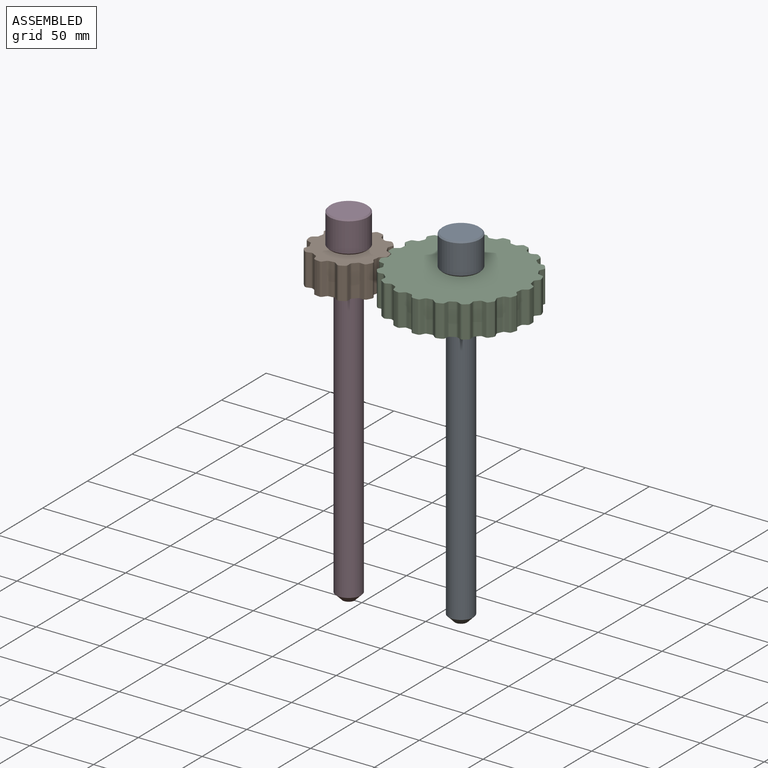
[diagram: assembled view]
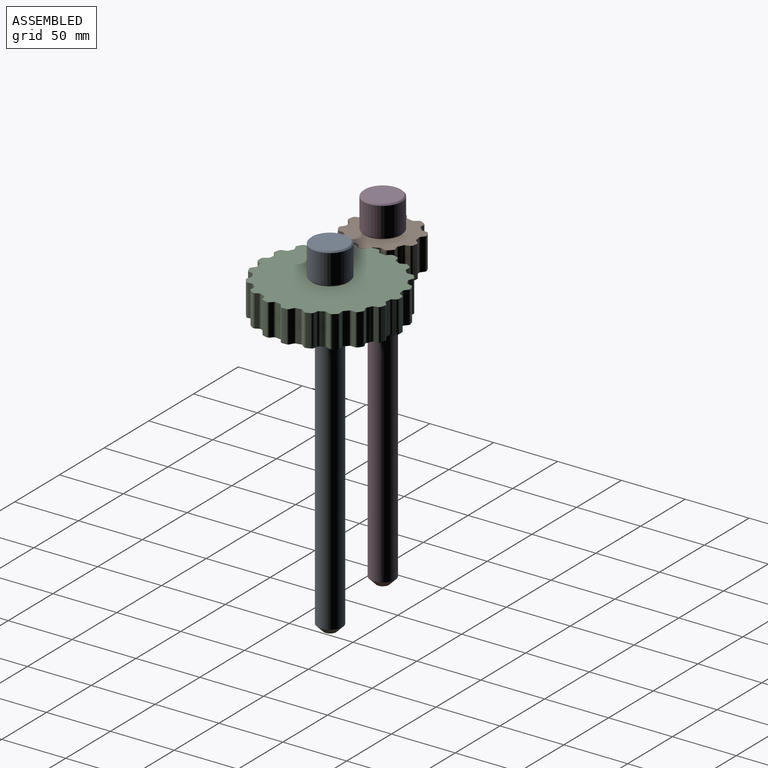
[diagram: assembled view, second angle]
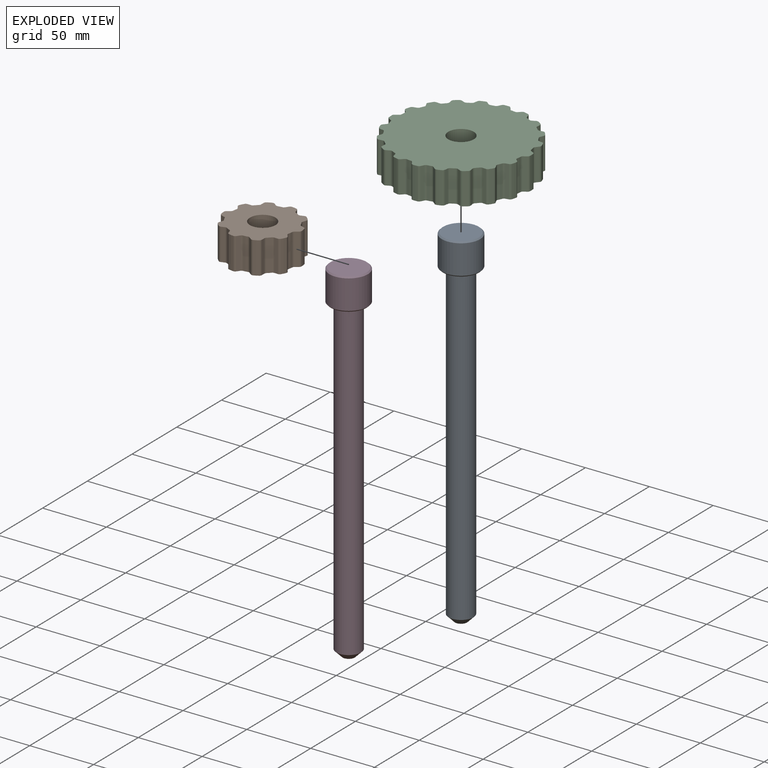
[diagram: exploded view]
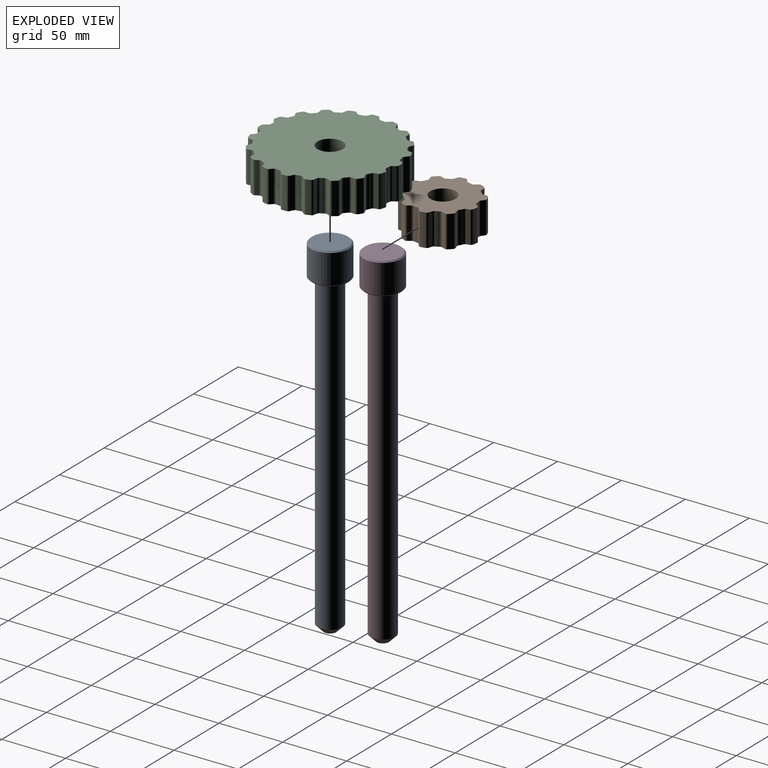
[diagram: exploded view, second angle]
ASSEMBLY  parts=4 mates=2
PART A: 9 faces, bbox 30x30x275 mm
  f0: cylinder r=9.75mm len=244mm, axis (0,0,-1), area 14947.7mm2, adj f7,f8
  f1: plane 9.5x9.5mm, normal (0,0,-1), area 70.9mm2, adj f7
  f2: cylinder r=15mm len=30mm, axis (0,0,-1), area 2167.7mm2, adj f5,f6
  f3: plane 28x28mm, normal (0,0,1), area 615.8mm2, adj f6
  f4: plane 28x28mm, normal (0,0,-1), area 252.7mm2, adj f5,f8
  f5: cone r=15mm half-angle=45deg, axis (0,0,1), area 128.8mm2, adj f2,f4
  f6: cone r=14mm half-angle=45deg, axis (0,0,-1), area 128.8mm2, adj f2,f3
  f7: cone r=9.75mm half-angle=45deg, axis (0,0,1), area 322.1mm2, adj f0,f1
  f8: torus R=10.75mm, axis (0,0,1), area 99.8mm2, adj f0,f4
PART B: 103 faces, bbox 56.3x58x25 mm
  f0: plane 25x2.78mm, normal (-0.99,0.17,0), area 70.4mm2, adj f61,f62,f63,f102
  f1: plane 25x1.45mm, normal (-0.63,-0.78,0), area 46.6mm2, adj f2,f61,f62,f63
  f2: plane 25x1.56mm, normal (-0.54,-0.84,0), area 46.6mm2, adj f1,f61,f62,f64
  f3: plane 25x2.49mm, normal (0.47,-0.89,0), area 70.4mm2, adj f61,f62,f64,f65
  f4: plane 25x1.6mm, normal (-0.36,-0.93,0), area 42.8mm2, adj f5,f61,f62,f65
  f5: plane 25x1.65mm, normal (-0.26,-0.97,0), area 42.8mm2, adj f4,f61,f62,f66
  f6: plane 25x2.53mm, normal (-0.9,-0.44,0), area 70.4mm2, adj f61,f62,f66,f67
  f7: plane 25x1.86mm, normal (-0.05,-1,0), area 46.6mm2, adj f8,f61,f62,f67
  f8: plane 25x1.86mm, normal (0.05,-1,0), area 46.6mm2, adj f7,f61,f62,f68
  f9: plane 25x2.53mm, normal (0.9,-0.44,0), area 70.4mm2, adj f61,f62,f68,f69
  f10: plane 25x1.65mm, normal (0.26,-0.97,0), area 42.8mm2, adj f11,f61,f62,f69
  f11: plane 25x1.6mm, normal (0.36,-0.93,0), area 42.8mm2, adj f10,f61,f62,f70
  f12: plane 25x2.49mm, normal (-0.47,-0.89,0), area 70.4mm2, adj f61,f62,f70,f71
  f13: plane 25x1.56mm, normal (0.54,-0.84,0), area 46.6mm2, adj f14,f61,f62,f71
  f14: plane 25x1.45mm, normal (0.63,-0.78,0), area 46.6mm2, adj f13,f61,f62,f72
  f15: plane 25x2.78mm, normal (0.99,0.17,0), area 70.4mm2, adj f61,f62,f72,f73
  f16: plane 25x1.33mm, normal (0.78,-0.63,0), area 42.8mm2, adj f17,f61,f62,f73
  f17: plane 25x1.44mm, normal (0.84,-0.54,0), area 42.8mm2, adj f16,f61,f62,f74
  f18: plane 25x2.79mm, normal (0.14,-0.99,0), area 70.4mm2, adj f61,f62,f74,f75
  f19: plane 25x1.74mm, normal (0.93,-0.36,0), area 46.6mm2, adj f20,f61,f62,f75
  f20: plane 25x1.8mm, normal (0.97,-0.26,0), area 46.6mm2, adj f19,f61,f62,f76
  f21: plane 25x2.02mm, normal (0.7,0.72,0), area 70.4mm2, adj f61,f62,f76,f77
  f22: plane 25x1.71mm, normal (1,-0.05,0), area 42.8mm2, adj f23,f61,f62,f77
  f23: plane 25x1.71mm, normal (1,0.05,0), area 42.8mm2, adj f22,f61,f62,f78
  f24: plane 25x2.02mm, normal (0.7,-0.72,0), area 70.4mm2, adj f61,f62,f78,f79
  f25: plane 25x1.8mm, normal (0.97,0.26,0), area 46.6mm2, adj f26,f61,f62,f79
  f26: plane 25x1.74mm, normal (0.93,0.36,0), area 46.6mm2, adj f25,f61,f62,f80
  f27: plane 25x2.79mm, normal (0.14,0.99,0), area 70.4mm2, adj f61,f62,f80,f81
  f28: plane 25x1.44mm, normal (0.84,0.54,0), area 42.8mm2, adj f29,f61,f62,f81
  f29: plane 25x1.33mm, normal (0.78,0.63,0), area 42.8mm2, adj f28,f61,f62,f82
  f30: plane 25x2.78mm, normal (0.99,-0.17,0), area 70.4mm2, adj f61,f62,f82,f83
  f31: plane 25x1.45mm, normal (0.63,0.78,0), area 46.6mm2, adj f32,f61,f62,f83
  f32: plane 25x1.56mm, normal (0.54,0.84,0), area 46.6mm2, adj f31,f61,f62,f84
  f33: plane 25x2.49mm, normal (-0.47,0.89,0), area 70.4mm2, adj f61,f62,f84,f85
  f34: plane 25x1.6mm, normal (0.36,0.93,0), area 42.8mm2, adj f35,f61,f62,f85
  f35: plane 25x1.65mm, normal (0.26,0.97,0), area 42.8mm2, adj f34,f61,f62,f86
  f36: plane 25x2.53mm, normal (0.9,0.44,0), area 70.4mm2, adj f61,f62,f86,f87
  f37: plane 25x1.86mm, normal (0.05,1,0), area 46.6mm2, adj f38,f61,f62,f87
  f38: plane 25x1.86mm, normal (-0.05,1,0), area 46.6mm2, adj f37,f61,f62,f88
  f39: plane 25x2.53mm, normal (-0.9,0.44,0), area 70.4mm2, adj f61,f62,f88,f89
  f40: plane 25x1.65mm, normal (-0.26,0.97,0), area 42.8mm2, adj f41,f61,f62,f89
  f41: plane 25x1.6mm, normal (-0.36,0.93,0), area 42.8mm2, adj f40,f61,f62,f90
  f42: plane 25x2.49mm, normal (0.47,0.89,0), area 70.4mm2, adj f61,f62,f90,f91
  f43: plane 25x1.56mm, normal (-0.54,0.84,0), area 46.6mm2, adj f44,f61,f62,f91
  f44: plane 25x1.45mm, normal (-0.63,0.78,0), area 46.6mm2, adj f43,f61,f62,f92
  f45: plane 25x2.78mm, normal (-0.99,-0.17,0), area 70.4mm2, adj f61,f62,f92,f93
  f46: plane 25x1.33mm, normal (-0.78,0.63,0), area 42.8mm2, adj f47,f61,f62,f93
  f47: plane 25x1.44mm, normal (-0.84,0.54,0), area 42.8mm2, adj f46,f61,f62,f94
  f48: plane 25x2.79mm, normal (-0.14,0.99,0), area 70.4mm2, adj f61,f62,f94,f95
  f49: plane 25x1.74mm, normal (-0.93,0.36,0), area 46.6mm2, adj f50,f61,f62,f95
  f50: plane 25x1.8mm, normal (-0.97,0.26,0), area 46.6mm2, adj f49,f61,f62,f96
  f51: plane 25x2.02mm, normal (-0.7,-0.72,0), area 70.4mm2, adj f61,f62,f96,f97
  f52: plane 25x1.71mm, normal (-1,0.05,0), area 42.8mm2, adj f53,f61,f62,f97
  f53: plane 25x1.71mm, normal (-1,-0.05,0), area 42.8mm2, adj f52,f61,f62,f98
  f54: plane 25x2.02mm, normal (-0.7,0.72,0), area 70.4mm2, adj f61,f62,f98,f99
  f55: plane 25x1.8mm, normal (-0.97,-0.26,0), area 46.6mm2, adj f56,f61,f62,f99
  f56: plane 25x1.74mm, normal (-0.93,-0.36,0), area 46.6mm2, adj f55,f61,f62,f100
  f57: plane 25x2.79mm, normal (-0.14,-0.99,0), area 70.4mm2, adj f61,f62,f100,f101
  f58: plane 25x1.44mm, normal (-0.84,-0.54,0), area 42.8mm2, adj f59,f61,f62,f101
  f59: plane 25x1.33mm, normal (-0.78,-0.63,0), area 42.8mm2, adj f58,f61,f62,f102
  f60: cylinder r=10mm len=25mm, axis (0,0,-1), area 1570.8mm2, adj f61,f62
  f61: plane 58x56.26mm, normal (0,0,1), area 1973.8mm2, adj f0,f1,f2,f3,f4,f5,f6,f7
  f62: plane 58x56.26mm, normal (0,0,-1), area 1973.8mm2, adj f0,f1,f2,f3,f4,f5,f6,f7
  f63: cylinder r=2mm len=25mm, axis (0,0,-1), area 53mm2, adj f0,f1,f61,f62
  f64: cylinder r=2mm len=25mm, axis (0,0,-1), area 53mm2, adj f2,f3,f61,f62
  f65: cylinder r=2mm len=25mm, axis (0,0,1), area 42.5mm2, adj f3,f4,f61,f62
  f66: cylinder r=2mm len=25mm, axis (0,0,1), area 42.5mm2, adj f5,f6,f61,f62
  f67: cylinder r=2mm len=25mm, axis (0,0,-1), area 53mm2, adj f6,f7,f61,f62
  f68: cylinder r=2mm len=25mm, axis (0,0,-1), area 53mm2, adj f8,f9,f61,f62
  f69: cylinder r=2mm len=25mm, axis (0,0,1), area 42.5mm2, adj f9,f10,f61,f62
  f70: cylinder r=2mm len=25mm, axis (0,0,1), area 42.5mm2, adj f11,f12,f61,f62
  f71: cylinder r=2mm len=25mm, axis (0,0,-1), area 53mm2, adj f12,f13,f61,f62
  f72: cylinder r=2mm len=25mm, axis (0,0,-1), area 53mm2, adj f14,f15,f61,f62
  f73: cylinder r=2mm len=25mm, axis (0,0,1), area 42.5mm2, adj f15,f16,f61,f62
  f74: cylinder r=2mm len=25mm, axis (0,0,1), area 42.5mm2, adj f17,f18,f61,f62
  f75: cylinder r=2mm len=25mm, axis (0,0,-1), area 53mm2, adj f18,f19,f61,f62
  f76: cylinder r=2mm len=25mm, axis (0,0,-1), area 53mm2, adj f20,f21,f61,f62
  f77: cylinder r=2mm len=25mm, axis (0,0,1), area 42.5mm2, adj f21,f22,f61,f62
  f78: cylinder r=2mm len=25mm, axis (0,0,1), area 42.5mm2, adj f23,f24,f61,f62
  f79: cylinder r=2mm len=25mm, axis (0,0,-1), area 53mm2, adj f24,f25,f61,f62
  f80: cylinder r=2mm len=25mm, axis (0,0,-1), area 53mm2, adj f26,f27,f61,f62
  f81: cylinder r=2mm len=25mm, axis (0,0,1), area 42.5mm2, adj f27,f28,f61,f62
  f82: cylinder r=2mm len=25mm, axis (0,0,1), area 42.5mm2, adj f29,f30,f61,f62
  f83: cylinder r=2mm len=25mm, axis (0,0,-1), area 53mm2, adj f30,f31,f61,f62
  f84: cylinder r=2mm len=25mm, axis (0,0,-1), area 53mm2, adj f32,f33,f61,f62
  f85: cylinder r=2mm len=25mm, axis (0,0,1), area 42.5mm2, adj f33,f34,f61,f62
  f86: cylinder r=2mm len=25mm, axis (0,0,1), area 42.5mm2, adj f35,f36,f61,f62
  f87: cylinder r=2mm len=25mm, axis (0,0,-1), area 53mm2, adj f36,f37,f61,f62
  f88: cylinder r=2mm len=25mm, axis (0,0,-1), area 53mm2, adj f38,f39,f61,f62
  f89: cylinder r=2mm len=25mm, axis (0,0,1), area 42.5mm2, adj f39,f40,f61,f62
  f90: cylinder r=2mm len=25mm, axis (0,0,1), area 42.5mm2, adj f41,f42,f61,f62
  f91: cylinder r=2mm len=25mm, axis (0,0,-1), area 53mm2, adj f42,f43,f61,f62
  f92: cylinder r=2mm len=25mm, axis (0,0,-1), area 53mm2, adj f44,f45,f61,f62
  f93: cylinder r=2mm len=25mm, axis (0,0,1), area 42.5mm2, adj f45,f46,f61,f62
  f94: cylinder r=2mm len=25mm, axis (0,0,1), area 42.5mm2, adj f47,f48,f61,f62
  f95: cylinder r=2mm len=25mm, axis (0,0,-1), area 53mm2, adj f48,f49,f61,f62
  f96: cylinder r=2mm len=25mm, axis (0,0,-1), area 53mm2, adj f50,f51,f61,f62
  f97: cylinder r=2mm len=25mm, axis (0,0,1), area 42.5mm2, adj f51,f52,f61,f62
  f98: cylinder r=2mm len=25mm, axis (0,0,1), area 42.5mm2, adj f53,f54,f61,f62
  f99: cylinder r=2mm len=25mm, axis (0,0,-1), area 53mm2, adj f54,f55,f61,f62
  f100: cylinder r=2mm len=25mm, axis (0,0,-1), area 53mm2, adj f56,f57,f61,f62
  f101: cylinder r=2mm len=25mm, axis (0,0,1), area 42.5mm2, adj f57,f58,f61,f62
  f102: cylinder r=2mm len=25mm, axis (0,0,1), area 42.5mm2, adj f0,f59,f61,f62
PART C: 203 faces, bbox 108x108x25 mm
  f0: plane 25x1.4mm, normal (-0.82,0.57,0), area 42.5mm2, adj f119,f121,f122,f123
  f1: plane 25x2.48mm, normal (-0.91,-0.41,0), area 68mm2, adj f121,f122,f123,f124
  f2: plane 25x1.43mm, normal (-0.88,0.48,0), area 40.6mm2, adj f3,f121,f122,f124
  f3: plane 25x1.47mm, normal (-0.9,0.43,0), area 40.6mm2, adj f2,f121,f122,f125
  f4: plane 25x2.66mm, normal (-0.2,0.98,0), area 68mm2, adj f121,f122,f125,f126
  f5: plane 25x1.6mm, normal (-0.94,0.33,0), area 42.5mm2, adj f6,f121,f122,f126
  f6: plane 25x1.63mm, normal (-0.96,0.28,0), area 42.5mm2, adj f5,f121,f122,f127
  f7: plane 25x2.01mm, normal (-0.74,-0.67,0), area 68mm2, adj f121,f122,f127,f128
  f8: plane 25x1.6mm, normal (-0.98,0.18,0), area 40.6mm2, adj f9,f121,f122,f128
  f9: plane 25x1.61mm, normal (-0.99,0.13,0), area 40.6mm2, adj f8,f121,f122,f129
  f10: plane 25x2.36mm, normal (-0.5,0.87,0), area 68mm2, adj f121,f122,f129,f130
  f11: plane 25x1.7mm, normal (-1,0.03,0), area 42.5mm2, adj f12,f121,f122,f130
  f12: plane 25x1.7mm, normal (-1,-0.03,0), area 42.5mm2, adj f11,f121,f122,f131
  f13: plane 25x2.36mm, normal (-0.5,-0.87,0), area 68mm2, adj f121,f122,f131,f132
  f14: plane 25x1.61mm, normal (-0.99,-0.13,0), area 40.6mm2, adj f15,f121,f122,f132
  f15: plane 25x1.6mm, normal (-0.98,-0.18,0), area 40.6mm2, adj f14,f121,f122,f133
  f16: plane 25x2.01mm, normal (-0.74,0.67,0), area 68mm2, adj f121,f122,f133,f134
  f17: plane 25x1.63mm, normal (-0.96,-0.28,0), area 42.5mm2, adj f18,f121,f122,f134
  f18: plane 25x1.6mm, normal (-0.94,-0.33,0), area 42.5mm2, adj f17,f121,f122,f135
  f19: plane 25x2.66mm, normal (-0.2,-0.98,0), area 68mm2, adj f121,f122,f135,f136
  f20: plane 25x1.47mm, normal (-0.9,-0.43,0), area 40.6mm2, adj f21,f121,f122,f136
  f21: plane 25x1.43mm, normal (-0.88,-0.48,0), area 40.6mm2, adj f20,f121,f122,f137
  f22: plane 25x2.48mm, normal (-0.91,0.41,0), area 68mm2, adj f121,f122,f137,f138
  f23: plane 25x1.4mm, normal (-0.82,-0.57,0), area 42.5mm2, adj f24,f121,f122,f138
  f24: plane 25x1.35mm, normal (-0.79,-0.61,0), area 42.5mm2, adj f23,f121,f122,f139
  f25: plane 25x2.7mm, normal (0.11,-0.99,0), area 68mm2, adj f121,f122,f139,f140
  f26: plane 25x1.18mm, normal (-0.73,-0.69,0), area 40.6mm2, adj f27,f121,f122,f140
  f27: plane 25x1.18mm, normal (-0.69,-0.73,0), area 40.6mm2, adj f26,f121,f122,f141
  f28: plane 25x2.7mm, normal (-0.99,0.11,0), area 68mm2, adj f121,f122,f141,f142
  f29: plane 25x1.35mm, normal (-0.61,-0.79,0), area 42.5mm2, adj f30,f121,f122,f142
  f30: plane 25x1.4mm, normal (-0.57,-0.82,0), area 42.5mm2, adj f29,f121,f122,f143
  f31: plane 25x2.48mm, normal (0.41,-0.91,0), area 68mm2, adj f121,f122,f143,f144
  f32: plane 25x1.43mm, normal (-0.48,-0.88,0), area 40.6mm2, adj f33,f121,f122,f144
  f33: plane 25x1.47mm, normal (-0.43,-0.9,0), area 40.6mm2, adj f32,f121,f122,f145
  f34: plane 25x2.66mm, normal (-0.98,-0.2,0), area 68mm2, adj f121,f122,f145,f146
  f35: plane 25x1.6mm, normal (-0.33,-0.94,0), area 42.5mm2, adj f36,f121,f122,f146
  f36: plane 25x1.63mm, normal (-0.28,-0.96,0), area 42.5mm2, adj f35,f121,f122,f147
  f37: plane 25x2.01mm, normal (0.67,-0.74,0), area 68mm2, adj f121,f122,f147,f148
  f38: plane 25x1.6mm, normal (-0.18,-0.98,0), area 40.6mm2, adj f39,f121,f122,f148
  f39: plane 25x1.61mm, normal (-0.13,-0.99,0), area 40.6mm2, adj f38,f121,f122,f149
  f40: plane 25x2.36mm, normal (-0.87,-0.5,0), area 68mm2, adj f121,f122,f149,f150
  f41: plane 25x1.7mm, normal (-0.03,-1,0), area 42.5mm2, adj f42,f121,f122,f150
  f42: plane 25x1.7mm, normal (0.03,-1,0), area 42.5mm2, adj f41,f121,f122,f151
  f43: plane 25x2.36mm, normal (0.87,-0.5,0), area 68mm2, adj f121,f122,f151,f152
  f44: plane 25x1.61mm, normal (0.13,-0.99,0), area 40.6mm2, adj f45,f121,f122,f152
  f45: plane 25x1.6mm, normal (0.18,-0.98,0), area 40.6mm2, adj f44,f121,f122,f153
  f46: plane 25x2.01mm, normal (-0.67,-0.74,0), area 68mm2, adj f121,f122,f153,f154
  f47: plane 25x1.63mm, normal (0.28,-0.96,0), area 42.5mm2, adj f48,f121,f122,f154
  f48: plane 25x1.6mm, normal (0.33,-0.94,0), area 42.5mm2, adj f47,f121,f122,f155
  f49: plane 25x2.66mm, normal (0.98,-0.2,0), area 68mm2, adj f121,f122,f155,f156
  f50: plane 25x1.47mm, normal (0.43,-0.9,0), area 40.6mm2, adj f51,f121,f122,f156
  f51: plane 25x1.43mm, normal (0.48,-0.88,0), area 40.6mm2, adj f50,f121,f122,f157
  f52: plane 25x2.48mm, normal (-0.41,-0.91,0), area 68mm2, adj f121,f122,f157,f158
  f53: plane 25x1.4mm, normal (0.57,-0.82,0), area 42.5mm2, adj f54,f121,f122,f158
  f54: plane 25x1.35mm, normal (0.61,-0.79,0), area 42.5mm2, adj f53,f121,f122,f159
  f55: plane 25x2.7mm, normal (0.99,0.11,0), area 68mm2, adj f121,f122,f159,f160
  f56: plane 25x1.18mm, normal (0.69,-0.73,0), area 40.6mm2, adj f57,f121,f122,f160
  f57: plane 25x1.18mm, normal (0.73,-0.69,0), area 40.6mm2, adj f56,f121,f122,f161
  f58: plane 25x2.7mm, normal (-0.11,-0.99,0), area 68mm2, adj f121,f122,f161,f162
  f59: plane 25x1.35mm, normal (0.79,-0.61,0), area 42.5mm2, adj f60,f121,f122,f162
  f60: plane 25x1.4mm, normal (0.82,-0.57,0), area 42.5mm2, adj f59,f121,f122,f163
  f61: plane 25x2.48mm, normal (0.91,0.41,0), area 68mm2, adj f121,f122,f163,f164
  f62: plane 25x1.43mm, normal (0.88,-0.48,0), area 40.6mm2, adj f63,f121,f122,f164
  f63: plane 25x1.47mm, normal (0.9,-0.43,0), area 40.6mm2, adj f62,f121,f122,f165
  f64: plane 25x2.66mm, normal (0.2,-0.98,0), area 68mm2, adj f121,f122,f165,f166
  f65: plane 25x1.6mm, normal (0.94,-0.33,0), area 42.5mm2, adj f66,f121,f122,f166
  f66: plane 25x1.63mm, normal (0.96,-0.28,0), area 42.5mm2, adj f65,f121,f122,f167
  f67: plane 25x2.01mm, normal (0.74,0.67,0), area 68mm2, adj f121,f122,f167,f168
  f68: plane 25x1.6mm, normal (0.98,-0.18,0), area 40.6mm2, adj f69,f121,f122,f168
  f69: plane 25x1.61mm, normal (0.99,-0.13,0), area 40.6mm2, adj f68,f121,f122,f169
  f70: plane 25x2.36mm, normal (0.5,-0.87,0), area 68mm2, adj f121,f122,f169,f170
  f71: plane 25x1.7mm, normal (1,-0.03,0), area 42.5mm2, adj f72,f121,f122,f170
  f72: plane 25x1.7mm, normal (1,0.03,0), area 42.5mm2, adj f71,f121,f122,f171
  f73: plane 25x2.36mm, normal (0.5,0.87,0), area 68mm2, adj f121,f122,f171,f172
  f74: plane 25x1.61mm, normal (0.99,0.13,0), area 40.6mm2, adj f75,f121,f122,f172
  f75: plane 25x1.6mm, normal (0.98,0.18,0), area 40.6mm2, adj f74,f121,f122,f173
  f76: plane 25x2.01mm, normal (0.74,-0.67,0), area 68mm2, adj f121,f122,f173,f174
  f77: plane 25x1.63mm, normal (0.96,0.28,0), area 42.5mm2, adj f78,f121,f122,f174
  f78: plane 25x1.6mm, normal (0.94,0.33,0), area 42.5mm2, adj f77,f121,f122,f175
  f79: plane 25x2.66mm, normal (0.2,0.98,0), area 68mm2, adj f121,f122,f175,f176
  f80: plane 25x1.47mm, normal (0.9,0.43,0), area 40.6mm2, adj f81,f121,f122,f176
  f81: plane 25x1.43mm, normal (0.88,0.48,0), area 40.6mm2, adj f80,f121,f122,f177
  f82: plane 25x2.48mm, normal (0.91,-0.41,0), area 68mm2, adj f121,f122,f177,f178
  f83: plane 25x1.4mm, normal (0.82,0.57,0), area 42.5mm2, adj f84,f121,f122,f178
  f84: plane 25x1.35mm, normal (0.79,0.61,0), area 42.5mm2, adj f83,f121,f122,f179
  f85: plane 25x2.7mm, normal (-0.11,0.99,0), area 68mm2, adj f121,f122,f179,f180
  f86: plane 25x1.18mm, normal (0.73,0.69,0), area 40.6mm2, adj f87,f121,f122,f180
  f87: plane 25x1.18mm, normal (0.69,0.73,0), area 40.6mm2, adj f86,f121,f122,f181
  f88: plane 25x2.7mm, normal (0.99,-0.11,0), area 68mm2, adj f121,f122,f181,f182
  f89: plane 25x1.35mm, normal (0.61,0.79,0), area 42.5mm2, adj f90,f121,f122,f182
  f90: plane 25x1.4mm, normal (0.57,0.82,0), area 42.5mm2, adj f89,f121,f122,f183
  f91: plane 25x2.48mm, normal (-0.41,0.91,0), area 68mm2, adj f121,f122,f183,f184
  f92: plane 25x1.43mm, normal (0.48,0.88,0), area 40.6mm2, adj f93,f121,f122,f184
  f93: plane 25x1.47mm, normal (0.43,0.9,0), area 40.6mm2, adj f92,f121,f122,f185
  f94: plane 25x2.66mm, normal (0.98,0.2,0), area 68mm2, adj f121,f122,f185,f186
  f95: plane 25x1.6mm, normal (0.33,0.94,0), area 42.5mm2, adj f96,f121,f122,f186
  f96: plane 25x1.63mm, normal (0.28,0.96,0), area 42.5mm2, adj f95,f121,f122,f187
  f97: plane 25x2.01mm, normal (-0.67,0.74,0), area 68mm2, adj f121,f122,f187,f188
  f98: plane 25x1.6mm, normal (0.18,0.98,0), area 40.6mm2, adj f99,f121,f122,f188
  f99: plane 25x1.61mm, normal (0.13,0.99,0), area 40.6mm2, adj f98,f121,f122,f189
  f100: plane 25x2.36mm, normal (0.87,0.5,0), area 68mm2, adj f121,f122,f189,f190
  f101: plane 25x1.7mm, normal (0.03,1,0), area 42.5mm2, adj f102,f121,f122,f190
  f102: plane 25x1.7mm, normal (-0.03,1,0), area 42.5mm2, adj f101,f121,f122,f191
  f103: plane 25x2.36mm, normal (-0.87,0.5,0), area 68mm2, adj f121,f122,f191,f192
  f104: plane 25x1.61mm, normal (-0.13,0.99,0), area 40.6mm2, adj f105,f121,f122,f192
  f105: plane 25x1.6mm, normal (-0.18,0.98,0), area 40.6mm2, adj f104,f121,f122,f193
  f106: plane 25x2.01mm, normal (0.67,0.74,0), area 68mm2, adj f121,f122,f193,f194
  f107: plane 25x1.63mm, normal (-0.28,0.96,0), area 42.5mm2, adj f108,f121,f122,f194
  f108: plane 25x1.6mm, normal (-0.33,0.94,0), area 42.5mm2, adj f107,f121,f122,f195
  f109: plane 25x2.66mm, normal (-0.98,0.2,0), area 68mm2, adj f121,f122,f195,f196
  f110: plane 25x1.47mm, normal (-0.43,0.9,0), area 40.6mm2, adj f111,f121,f122,f196
  f111: plane 25x1.43mm, normal (-0.48,0.88,0), area 40.6mm2, adj f110,f121,f122,f197
  f112: plane 25x2.48mm, normal (0.41,0.91,0), area 68mm2, adj f121,f122,f197,f198
  f113: plane 25x1.4mm, normal (-0.57,0.82,0), area 42.5mm2, adj f114,f121,f122,f198
  f114: plane 25x1.35mm, normal (-0.61,0.79,0), area 42.5mm2, adj f113,f121,f122,f199
  f115: plane 25x2.7mm, normal (-0.99,-0.11,0), area 68mm2, adj f121,f122,f199,f200
  f116: plane 25x1.18mm, normal (-0.69,0.73,0), area 40.6mm2, adj f117,f121,f122,f200
  f117: plane 25x1.18mm, normal (-0.73,0.69,0), area 40.6mm2, adj f116,f121,f122,f201
  f118: plane 25x2.7mm, normal (0.11,0.99,0), area 68mm2, adj f121,f122,f201,f202
  f119: plane 25x1.35mm, normal (-0.79,0.61,0), area 42.5mm2, adj f0,f121,f122,f202
  f120: cylinder r=10mm len=25mm, axis (0,0,-1), area 1570.8mm2, adj f121,f122
  f121: plane 108x108mm, normal (0,0,1), area 8178.7mm2, adj f0,f1,f2,f3,f4,f5,f6,f7
  f122: plane 108x108mm, normal (0,0,-1), area 8178.7mm2, adj f0,f1,f2,f3,f4,f5,f6,f7
  f123: cylinder r=2mm len=25mm, axis (0,0,-1), area 51.3mm2, adj f0,f1,f121,f122
  f124: cylinder r=2mm len=25mm, axis (0,0,1), area 46mm2, adj f1,f2,f121,f122
  f125: cylinder r=2mm len=25mm, axis (0,0,-1), area 46mm2, adj f3,f4,f121,f122
  f126: cylinder r=2mm len=25mm, axis (0,0,1), area 51.3mm2, adj f4,f5,f121,f122
  f127: cylinder r=2mm len=25mm, axis (0,0,-1), area 51.3mm2, adj f6,f7,f121,f122
  f128: cylinder r=2mm len=25mm, axis (0,0,1), area 46mm2, adj f7,f8,f121,f122
  f129: cylinder r=2mm len=25mm, axis (0,0,-1), area 46mm2, adj f9,f10,f121,f122
  f130: cylinder r=2mm len=25mm, axis (0,0,1), area 51.3mm2, adj f10,f11,f121,f122
  f131: cylinder r=2mm len=25mm, axis (0,0,-1), area 51.3mm2, adj f12,f13,f121,f122
  f132: cylinder r=2mm len=25mm, axis (0,0,1), area 46mm2, adj f13,f14,f121,f122
  f133: cylinder r=2mm len=25mm, axis (0,0,-1), area 46mm2, adj f15,f16,f121,f122
  f134: cylinder r=2mm len=25mm, axis (0,0,1), area 51.3mm2, adj f16,f17,f121,f122
  f135: cylinder r=2mm len=25mm, axis (0,0,-1), area 51.3mm2, adj f18,f19,f121,f122
  f136: cylinder r=2mm len=25mm, axis (0,0,1), area 46mm2, adj f19,f20,f121,f122
  f137: cylinder r=2mm len=25mm, axis (0,0,-1), area 46mm2, adj f21,f22,f121,f122
  f138: cylinder r=2mm len=25mm, axis (0,0,1), area 51.3mm2, adj f22,f23,f121,f122
  f139: cylinder r=2mm len=25mm, axis (0,0,-1), area 51.3mm2, adj f24,f25,f121,f122
  f140: cylinder r=2mm len=25mm, axis (0,0,1), area 46mm2, adj f25,f26,f121,f122
  f141: cylinder r=2mm len=25mm, axis (0,0,-1), area 46mm2, adj f27,f28,f121,f122
  f142: cylinder r=2mm len=25mm, axis (0,0,1), area 51.3mm2, adj f28,f29,f121,f122
  f143: cylinder r=2mm len=25mm, axis (0,0,-1), area 51.3mm2, adj f30,f31,f121,f122
  f144: cylinder r=2mm len=25mm, axis (0,0,1), area 46mm2, adj f31,f32,f121,f122
  f145: cylinder r=2mm len=25mm, axis (0,0,-1), area 46mm2, adj f33,f34,f121,f122
  f146: cylinder r=2mm len=25mm, axis (0,0,1), area 51.3mm2, adj f34,f35,f121,f122
  f147: cylinder r=2mm len=25mm, axis (0,0,-1), area 51.3mm2, adj f36,f37,f121,f122
  f148: cylinder r=2mm len=25mm, axis (0,0,1), area 46mm2, adj f37,f38,f121,f122
  f149: cylinder r=2mm len=25mm, axis (0,0,-1), area 46mm2, adj f39,f40,f121,f122
  f150: cylinder r=2mm len=25mm, axis (0,0,1), area 51.3mm2, adj f40,f41,f121,f122
  f151: cylinder r=2mm len=25mm, axis (0,0,-1), area 51.3mm2, adj f42,f43,f121,f122
  f152: cylinder r=2mm len=25mm, axis (0,0,1), area 46mm2, adj f43,f44,f121,f122
  f153: cylinder r=2mm len=25mm, axis (0,0,-1), area 46mm2, adj f45,f46,f121,f122
  f154: cylinder r=2mm len=25mm, axis (0,0,1), area 51.3mm2, adj f46,f47,f121,f122
  f155: cylinder r=2mm len=25mm, axis (0,0,-1), area 51.3mm2, adj f48,f49,f121,f122
  f156: cylinder r=2mm len=25mm, axis (0,0,1), area 46mm2, adj f49,f50,f121,f122
  f157: cylinder r=2mm len=25mm, axis (0,0,-1), area 46mm2, adj f51,f52,f121,f122
  f158: cylinder r=2mm len=25mm, axis (0,0,1), area 51.3mm2, adj f52,f53,f121,f122
  f159: cylinder r=2mm len=25mm, axis (0,0,-1), area 51.3mm2, adj f54,f55,f121,f122
  f160: cylinder r=2mm len=25mm, axis (0,0,1), area 46mm2, adj f55,f56,f121,f122
  f161: cylinder r=2mm len=25mm, axis (0,0,-1), area 46mm2, adj f57,f58,f121,f122
  f162: cylinder r=2mm len=25mm, axis (0,0,1), area 51.3mm2, adj f58,f59,f121,f122
  f163: cylinder r=2mm len=25mm, axis (0,0,-1), area 51.3mm2, adj f60,f61,f121,f122
  f164: cylinder r=2mm len=25mm, axis (0,0,1), area 46mm2, adj f61,f62,f121,f122
  f165: cylinder r=2mm len=25mm, axis (0,0,-1), area 46mm2, adj f63,f64,f121,f122
  f166: cylinder r=2mm len=25mm, axis (0,0,1), area 51.3mm2, adj f64,f65,f121,f122
  f167: cylinder r=2mm len=25mm, axis (0,0,-1), area 51.3mm2, adj f66,f67,f121,f122
  f168: cylinder r=2mm len=25mm, axis (0,0,1), area 46mm2, adj f67,f68,f121,f122
  f169: cylinder r=2mm len=25mm, axis (0,0,-1), area 46mm2, adj f69,f70,f121,f122
  f170: cylinder r=2mm len=25mm, axis (0,0,1), area 51.3mm2, adj f70,f71,f121,f122
  f171: cylinder r=2mm len=25mm, axis (0,0,-1), area 51.3mm2, adj f72,f73,f121,f122
  f172: cylinder r=2mm len=25mm, axis (0,0,1), area 46mm2, adj f73,f74,f121,f122
  f173: cylinder r=2mm len=25mm, axis (0,0,-1), area 46mm2, adj f75,f76,f121,f122
  f174: cylinder r=2mm len=25mm, axis (0,0,1), area 51.3mm2, adj f76,f77,f121,f122
  f175: cylinder r=2mm len=25mm, axis (0,0,-1), area 51.3mm2, adj f78,f79,f121,f122
  f176: cylinder r=2mm len=25mm, axis (0,0,1), area 46mm2, adj f79,f80,f121,f122
  f177: cylinder r=2mm len=25mm, axis (0,0,-1), area 46mm2, adj f81,f82,f121,f122
  f178: cylinder r=2mm len=25mm, axis (0,0,1), area 51.3mm2, adj f82,f83,f121,f122
  f179: cylinder r=2mm len=25mm, axis (0,0,-1), area 51.3mm2, adj f84,f85,f121,f122
  f180: cylinder r=2mm len=25mm, axis (0,0,1), area 46mm2, adj f85,f86,f121,f122
  f181: cylinder r=2mm len=25mm, axis (0,0,-1), area 46mm2, adj f87,f88,f121,f122
  f182: cylinder r=2mm len=25mm, axis (0,0,1), area 51.3mm2, adj f88,f89,f121,f122
  f183: cylinder r=2mm len=25mm, axis (0,0,-1), area 51.3mm2, adj f90,f91,f121,f122
  f184: cylinder r=2mm len=25mm, axis (0,0,1), area 46mm2, adj f91,f92,f121,f122
  f185: cylinder r=2mm len=25mm, axis (0,0,-1), area 46mm2, adj f93,f94,f121,f122
  f186: cylinder r=2mm len=25mm, axis (0,0,1), area 51.3mm2, adj f94,f95,f121,f122
  f187: cylinder r=2mm len=25mm, axis (0,0,-1), area 51.3mm2, adj f96,f97,f121,f122
  f188: cylinder r=2mm len=25mm, axis (0,0,1), area 46mm2, adj f97,f98,f121,f122
  f189: cylinder r=2mm len=25mm, axis (0,0,-1), area 46mm2, adj f99,f100,f121,f122
  f190: cylinder r=2mm len=25mm, axis (0,0,1), area 51.3mm2, adj f100,f101,f121,f122
  f191: cylinder r=2mm len=25mm, axis (0,0,-1), area 51.3mm2, adj f102,f103,f121,f122
  f192: cylinder r=2mm len=25mm, axis (0,0,1), area 46mm2, adj f103,f104,f121,f122
  f193: cylinder r=2mm len=25mm, axis (0,0,-1), area 46mm2, adj f105,f106,f121,f122
  f194: cylinder r=2mm len=25mm, axis (0,0,1), area 51.3mm2, adj f106,f107,f121,f122
  f195: cylinder r=2mm len=25mm, axis (0,0,-1), area 51.3mm2, adj f108,f109,f121,f122
  f196: cylinder r=2mm len=25mm, axis (0,0,1), area 46mm2, adj f109,f110,f121,f122
  f197: cylinder r=2mm len=25mm, axis (0,0,-1), area 46mm2, adj f111,f112,f121,f122
  f198: cylinder r=2mm len=25mm, axis (0,0,1), area 51.3mm2, adj f112,f113,f121,f122
  f199: cylinder r=2mm len=25mm, axis (0,0,-1), area 51.3mm2, adj f114,f115,f121,f122
  f200: cylinder r=2mm len=25mm, axis (0,0,1), area 46mm2, adj f115,f116,f121,f122
  f201: cylinder r=2mm len=25mm, axis (0,0,-1), area 46mm2, adj f117,f118,f121,f122
  f202: cylinder r=2mm len=25mm, axis (0,0,1), area 51.3mm2, adj f118,f119,f121,f122
PART D: same geometry as A
PLACE A rot(axis=(0,0,-1),126deg) t=(-187.65,-24.86,-163.42)mm fixed
PLACE B rot(axis=(0.39,0.92,0),180deg) t=(-254.41,-29.82,85.39)mm
PLACE C rot(axis=(-0.02,1,0),180deg) t=(-49.69,-11.64,85.58)mm
PLACE D rot(axis=(0,0,1),30.6deg) t=(-240.27,-26.47,-163.61)mm fixed
MATE revolute C.f120 <-> A.f0  axis (0,0,1) through (-176,-16.18,85.58)mm
MATE revolute B.f60 <-> D.f0  axis (0,0,1) through (-254.41,-29.82,85.39)mm
